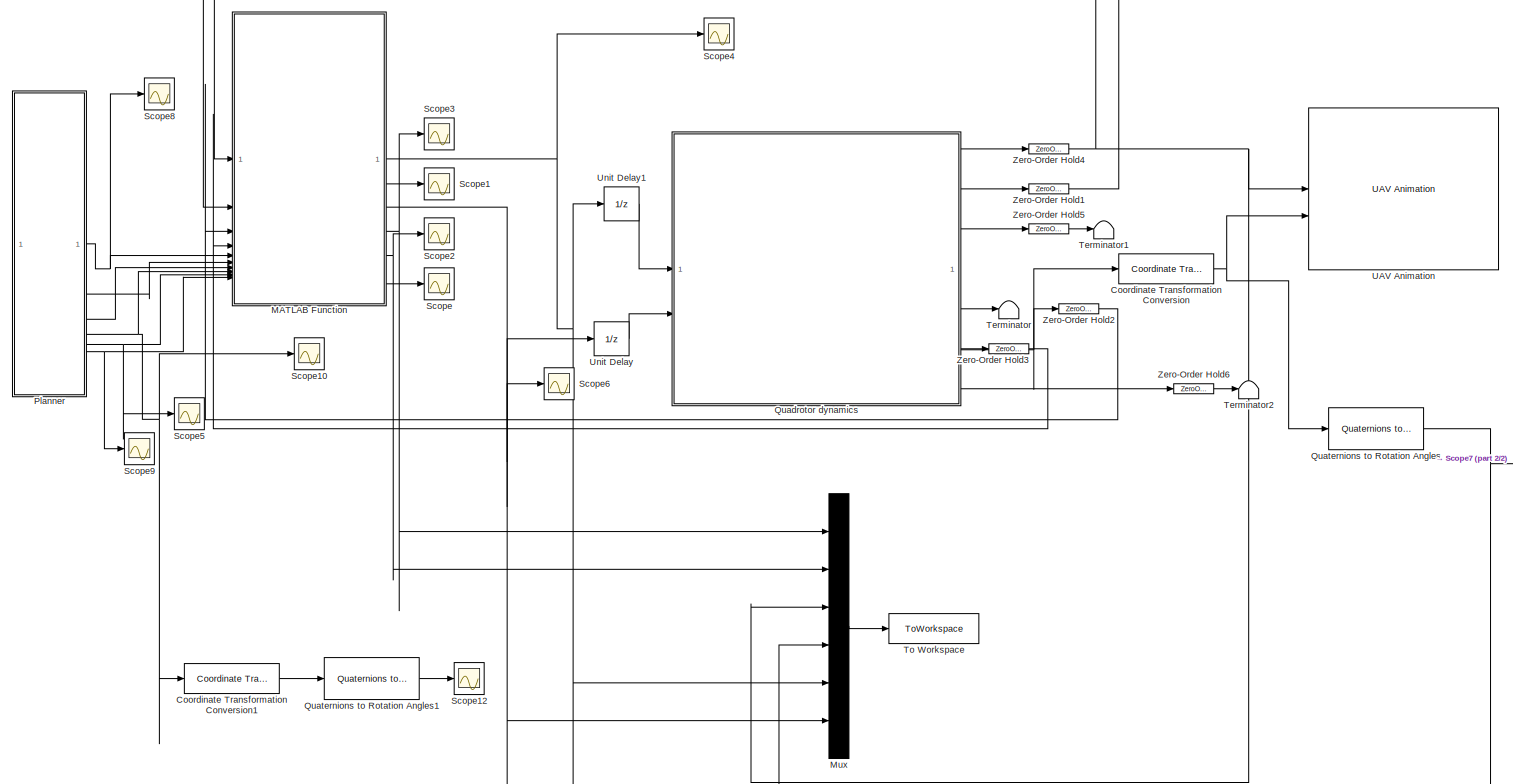
[diagram: root canvas - part 1/2, most of the canvas]
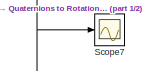
[diagram: root canvas - part 2/2, middle right region]
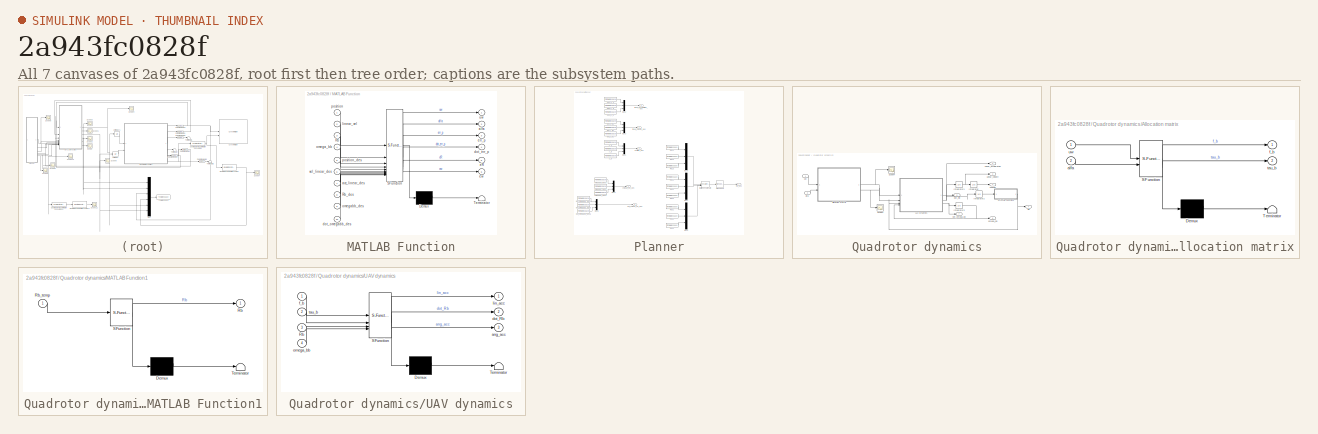
[diagram: thumbnail index - all 7 canvases of the model, root first then tree order]
MODEL slx_2a943fc0828f
KIND model
CONFIG AbsTol = auto
CONFIG EnableMultiTasking = off
CONFIG FixedStep = auto
CONFIG InitFcn = %% INITIALIZATION\n\n%% UAV PARAMETERS\n\nmass = 1.32;\nIb = diag([0.0154 0.0154 0.0263]); \ncf = 1.65776*10^(-5);\ncm = 2.1792*10^(-7);\nl = 0.45;\n\n%% SAMPLING TIME\nTs=0.001;\n\n%% PLANNER\nt_iniz = 0;\nttot=20; %duration\ntdead=10; %dead time to evaluate the steady-state\ntot_time = ttot + tdead;\nt1=linspace(0,ttot,round(ttot/Ts));\nt=linspace(0,ttot+tdead,round(ttot/Ts)+round(tdead/Ts));\np= zeros(4,length(t1)...<+4158ch>
CONFIG MaxStep = auto
CONFIG MinStep = auto
CONFIG RelTol = 1e-3
CONFIG SampleTimeConstraint = Unconstrained
CONFIG SolverName = VariableStepAuto
CONFIG StartTime = 0.0
CONFIG StopTime = 30.0
BLOCK [Reference] Coordinate Transformation Conversion  REF=robotcorelib/Coordinate Transformation Conversion
  SourceBlock = robotcorelib/Coordinate Transformation Conversion
  SourceType = robotics.slcore.internal.block.CoordinateTransformationConversion
BLOCK [Reference] Coordinate Transformation Conversion1  REF=robotcorelib/Coordinate Transformation Conversion
  SourceBlock = robotcorelib/Coordinate Transformation Conversion
  SourceType = robotics.slcore.internal.block.CoordinateTransformationConversion
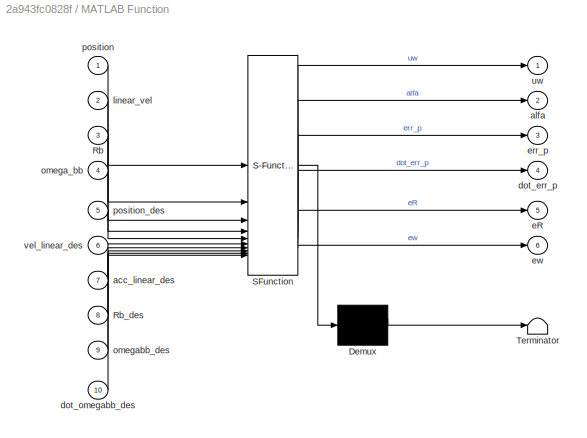
BLOCK [SubSystem] MATLAB Function
  ErrorFcn = Stateflow.Translate.translate
  PermitHierarchicalResolution = ExplicitOnly
  SFBlockType = MATLAB Function
  TreatAsAtomicUnit = on
BLOCK [Demux] MATLAB Function/ Demux 
  Outputs = 1
BLOCK [S-Function] MATLAB Function/ SFunction 
  EnableBusSupport = on
  FunctionName = sf_sfun
  Parameters = Ib,cf,cm,l,mass
  PortCounts = [10 7]
  SFcnIsStateOwnerBlock = off
  SFunctionDeploymentMode = off
  Tag = Stateflow S-Function 3
BLOCK [Terminator] MATLAB Function/ Terminator 
BLOCK [Inport] MATLAB Function/Rb
  Port = 3
BLOCK [Inport] MATLAB Function/Rb_des
  Port = 8
BLOCK [Inport] MATLAB Function/acc_linear_des
  Port = 7
BLOCK [Outport] MATLAB Function/alfa
  Port = 2
BLOCK [Outport] MATLAB Function/dot_err_p
  Port = 4
BLOCK [Inport] MATLAB Function/dot_omegabb_des
  Port = 10
BLOCK [Outport] MATLAB Function/eR
  Port = 5
BLOCK [Outport] MATLAB Function/err_p
  Port = 3
BLOCK [Outport] MATLAB Function/ew
  Port = 6
BLOCK [Inport] MATLAB Function/linear_vel
  Port = 2
BLOCK [Inport] MATLAB Function/omega_bb
  Port = 4
BLOCK [Inport] MATLAB Function/omegabb_des
  Port = 9
BLOCK [Inport] MATLAB Function/position
BLOCK [Inport] MATLAB Function/position_des
  Port = 5
BLOCK [Outport] MATLAB Function/uw
BLOCK [Inport] MATLAB Function/vel_linear_des
  Port = 6
BLOCK [Mux] Mux
  DisplayOption = bar
  Inputs = 6
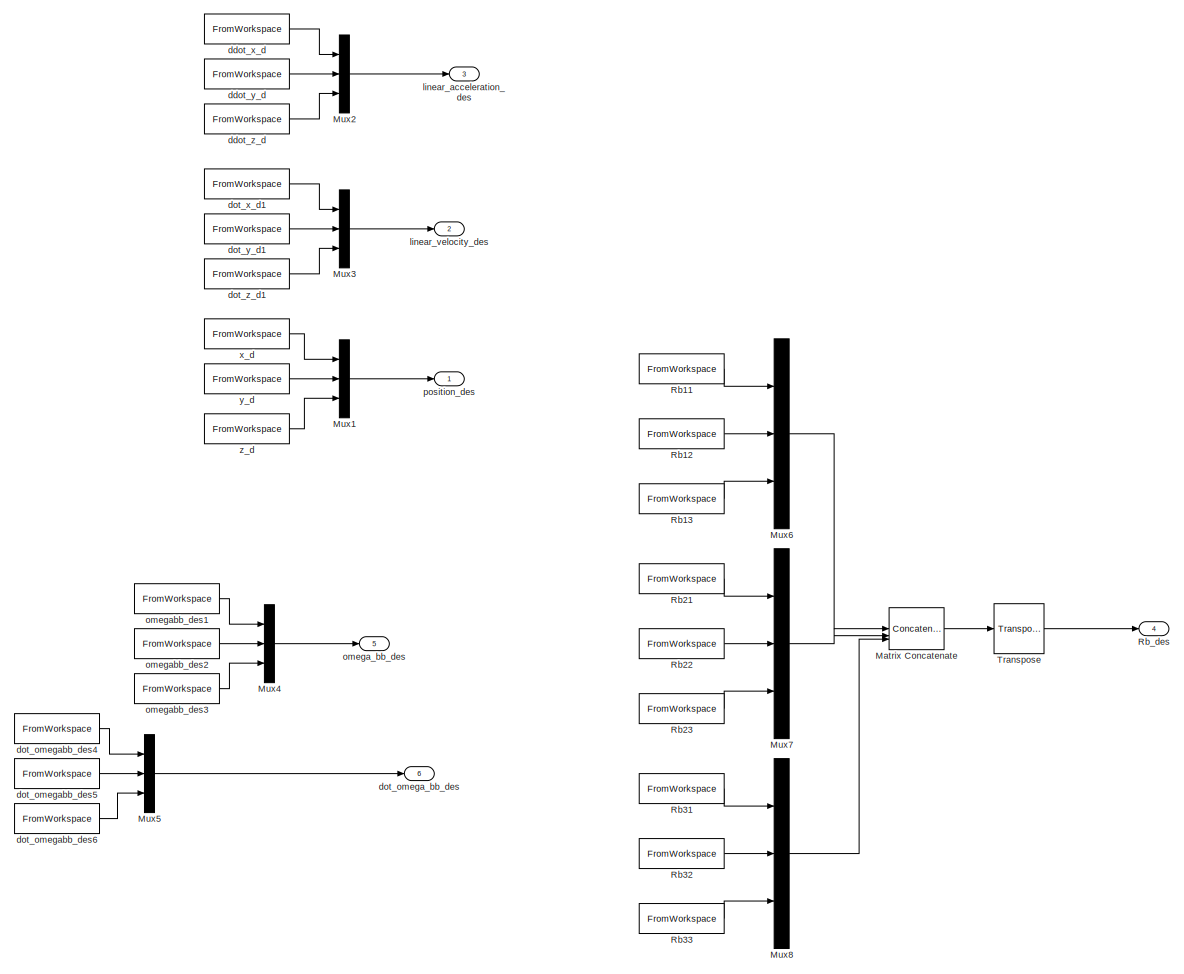
[diagram: Planner - part 1/1, most of the canvas]
BLOCK [SubSystem] Planner
BLOCK [Concatenate] Planner/Matrix Concatenate
  ConcatenateDimension = 2
  Mode = Multidimensional array
  NumInputs = 3
BLOCK [Mux] Planner/Mux1
  DisplayOption = bar
  Inputs = 3
BLOCK [Mux] Planner/Mux2
  DisplayOption = bar
  Inputs = 3
BLOCK [Mux] Planner/Mux3
  DisplayOption = bar
  Inputs = 3
BLOCK [Mux] Planner/Mux4
  DisplayOption = bar
  Inputs = 3
BLOCK [Mux] Planner/Mux5
  DisplayOption = bar
  Inputs = 3
BLOCK [Mux] Planner/Mux6
  DisplayOption = bar
  Inputs = 3
BLOCK [Mux] Planner/Mux7
  DisplayOption = bar
  Inputs = 3
BLOCK [Mux] Planner/Mux8
  DisplayOption = bar
  Inputs = 3
BLOCK [FromWorkspace] Planner/Rb11
  SampleTime = Ts
  VariableName = [t' squeeze(Rbdes(1,1,:))]
BLOCK [FromWorkspace] Planner/Rb12
  SampleTime = Ts
  VariableName = [t' squeeze(Rbdes(1,2,:))]
BLOCK [FromWorkspace] Planner/Rb13
  SampleTime = Ts
  VariableName = [t' squeeze(Rbdes(1,3,:))]
BLOCK [FromWorkspace] Planner/Rb21
  SampleTime = Ts
  VariableName = [t' squeeze(Rbdes(2,1,:))]
BLOCK [FromWorkspace] Planner/Rb22
  SampleTime = Ts
  VariableName = [t' squeeze(Rbdes(2,2,:))]
BLOCK [FromWorkspace] Planner/Rb23
  SampleTime = Ts
  VariableName = [t' squeeze(Rbdes(2,3,:))]
BLOCK [FromWorkspace] Planner/Rb31
  SampleTime = Ts
  VariableName = [t' squeeze(Rbdes(3,1,:))]
BLOCK [FromWorkspace] Planner/Rb32
  SampleTime = Ts
  VariableName = [t' squeeze(Rbdes(3,2,:))]
BLOCK [FromWorkspace] Planner/Rb33
  SampleTime = Ts
  VariableName = [t' squeeze(Rbdes(3,3,:))]
BLOCK [Outport] Planner/Rb_des
  Port = 4
BLOCK [Reference] Planner/Transpose  REF=matrix_library/Transpose
  LibrarySourceBlock = simulink/Matrix\nOperations/Transpose
  SourceBlock = matrix_library/Transpose
  SourceType = Transpose
BLOCK [FromWorkspace] Planner/ddot_x_d
  SampleTime = Ts
  VariableName = [t' ddot_csi_d(1,:)']
BLOCK [FromWorkspace] Planner/ddot_y_d
  SampleTime = Ts
  VariableName = [t' ddot_csi_d(2,:)']
BLOCK [FromWorkspace] Planner/ddot_z_d
  SampleTime = Ts
  VariableName = [t' ddot_csi_d(3,:)']
BLOCK [Outport] Planner/dot_omega_bb_des
  Port = 6
BLOCK [FromWorkspace] Planner/dot_omegabb_des4
  SampleTime = Ts
  VariableName = [t' dot_omegabb_des(1,:)']
BLOCK [FromWorkspace] Planner/dot_omegabb_des5
  SampleTime = Ts
  VariableName = [t' dot_omegabb_des(2,:)']
BLOCK [FromWorkspace] Planner/dot_omegabb_des6
  SampleTime = Ts
  VariableName = [t' dot_omegabb_des(3,:)']
BLOCK [FromWorkspace] Planner/dot_x_d1
  SampleTime = Ts
  VariableName = [t' dot_csi_d(1,:)']
BLOCK [FromWorkspace] Planner/dot_y_d1
  SampleTime = Ts
  VariableName = [t' dot_csi_d(2,:)']
BLOCK [FromWorkspace] Planner/dot_z_d1
  SampleTime = Ts
  VariableName = [t' dot_csi_d(3,:)']
BLOCK [Outport] Planner/linear_acceleration_des
  Port = 3
BLOCK [Outport] Planner/linear_velocity_des
  Port = 2
BLOCK [Outport] Planner/omega_bb_des
  Port = 5
BLOCK [FromWorkspace] Planner/omegabb_des1
  SampleTime = Ts
  VariableName = [t' omegabb_des(1,:)']
BLOCK [FromWorkspace] Planner/omegabb_des2
  SampleTime = Ts
  VariableName = [t' omegabb_des(2,:)']
BLOCK [FromWorkspace] Planner/omegabb_des3
  SampleTime = Ts
  VariableName = [t' omegabb_des(3,:)']
BLOCK [Outport] Planner/position_des
BLOCK [FromWorkspace] Planner/x_d
  SampleTime = Ts
  VariableName = [t' csi_d(1,:)']
BLOCK [FromWorkspace] Planner/y_d
  SampleTime = Ts
  VariableName = [t' csi_d(2,:)']
BLOCK [FromWorkspace] Planner/z_d
  SampleTime = Ts
  VariableName = [t' csi_d(3,:)']
BLOCK [SubSystem] Quadrotor dynamics
BLOCK [SubSystem] Quadrotor dynamics/Allocation matrix
  ErrorFcn = Stateflow.Translate.translate
  PermitHierarchicalResolution = ExplicitOnly
  SFBlockType = MATLAB Function
  TreatAsAtomicUnit = on
BLOCK [Demux] Quadrotor dynamics/Allocation matrix/ Demux 
  Outputs = 1
BLOCK [S-Function] Quadrotor dynamics/Allocation matrix/ SFunction 
  EnableBusSupport = on
  FunctionName = sf_sfun
  Parameters = cf,cm,l
  PortCounts = [2 3]
  SFcnIsStateOwnerBlock = off
  SFunctionDeploymentMode = off
  Tag = Stateflow S-Function 1
BLOCK [Terminator] Quadrotor dynamics/Allocation matrix/ Terminator 
BLOCK [Inport] Quadrotor dynamics/Allocation matrix/alfa
  Port = 2
BLOCK [Outport] Quadrotor dynamics/Allocation matrix/f_b
BLOCK [Outport] Quadrotor dynamics/Allocation matrix/tau_b
  Port = 2
BLOCK [Inport] Quadrotor dynamics/Allocation matrix/uw
BLOCK [Integrator] Quadrotor dynamics/Integrator
  InitialCondition = pos_0
BLOCK [Integrator] Quadrotor dynamics/Integrator1
  InitialCondition = lin_vel_0
BLOCK [Integrator] Quadrotor dynamics/Integrator2
  InitialCondition = [1 0 0; 0 1 0;0 0 1]
BLOCK [Integrator] Quadrotor dynamics/Integrator3
  InitialCondition = w_bb_0
BLOCK [Outport] Quadrotor dynamics/Linear_acceleration
  Port = 3
BLOCK [Outport] Quadrotor dynamics/Linear_velocity
  Port = 2
BLOCK [SubSystem] Quadrotor dynamics/MATLAB Function1
  ErrorFcn = Stateflow.Translate.translate
  PermitHierarchicalResolution = ExplicitOnly
  SFBlockType = MATLAB Function
  TreatAsAtomicUnit = on
BLOCK [Demux] Quadrotor dynamics/MATLAB Function1/ Demux 
  Outputs = 1
BLOCK [S-Function] Quadrotor dynamics/MATLAB Function1/ SFunction 
  EnableBusSupport = on
  FunctionName = sf_sfun
  PortCounts = [1 2]
  SFcnIsStateOwnerBlock = off
  SFunctionDeploymentMode = off
  Tag = Stateflow S-Function 5
BLOCK [Terminator] Quadrotor dynamics/MATLAB Function1/ Terminator 
BLOCK [Outport] Quadrotor dynamics/MATLAB Function1/Rb
BLOCK [Inport] Quadrotor dynamics/MATLAB Function1/Rb_temp
BLOCK [Outport] Quadrotor dynamics/Position
BLOCK [Outport] Quadrotor dynamics/Rb
  Port = 4
BLOCK [Scope] Quadrotor dynamics/Scope1
  Floating = off
  NumInputPorts = 1
  ScopeSpecificationString = Simulink.scopes.TimeScopeBlockCfg('CurrentConfiguration', extmgr.ConfigurationSet(extmgr.Configuration('Core','General UI',true,'DisplayFullSourceName',false,'ShowMainToolbar',true),extmgr.Configuration('Sources','WiredSimulink',true,'DataLogging',false,'DataLoggingVariableName','ScopeData5','DataLoggingLimitDataPoints',false,'DataLoggingMaxPoints','5000','DataLoggingDecimateData',false,'DataLoggi...<+1982ch>
BLOCK [Scope] Quadrotor dynamics/Scope4
  Floating = off
  NumInputPorts = 1
  ScopeSpecificationString = Simulink.scopes.TimeScopeBlockCfg('CurrentConfiguration', extmgr.ConfigurationSet(extmgr.Configuration('Core','General UI',true),extmgr.Configuration('Core','Source UI',true),extmgr.Configuration('Sources','WiredSimulink',true,'DataLoggingVariableName','ScopeData4'),extmgr.Configuration('Visuals','Time Domain',true,'SerializedDisplays',{struct('MinYLimReal','-15.88093','MaxYLimReal','12.93756','YL...<+1676ch>
BLOCK [SubSystem] Quadrotor dynamics/UAV dynamics
  ErrorFcn = Stateflow.Translate.translate
  PermitHierarchicalResolution = ExplicitOnly
  SFBlockType = MATLAB Function
  TreatAsAtomicUnit = on
BLOCK [Demux] Quadrotor dynamics/UAV dynamics/ Demux 
  Outputs = 1
BLOCK [S-Function] Quadrotor dynamics/UAV dynamics/ SFunction 
  EnableBusSupport = on
  FunctionName = sf_sfun
  Parameters = Ib,mass
  PortCounts = [4 4]
  SFcnIsStateOwnerBlock = off
  SFunctionDeploymentMode = off
  Tag = Stateflow S-Function 2
BLOCK [Terminator] Quadrotor dynamics/UAV dynamics/ Terminator 
BLOCK [Inport] Quadrotor dynamics/UAV dynamics/Rb
  Port = 3
BLOCK [Outport] Quadrotor dynamics/UAV dynamics/ang_acc
  Port = 3
BLOCK [Outport] Quadrotor dynamics/UAV dynamics/dot_Rb
  Port = 2
BLOCK [Inport] Quadrotor dynamics/UAV dynamics/f_b
BLOCK [Outport] Quadrotor dynamics/UAV dynamics/lin_acc
BLOCK [Inport] Quadrotor dynamics/UAV dynamics/omega_bb
  Port = 4
BLOCK [Inport] Quadrotor dynamics/UAV dynamics/tau_b
  Port = 2
BLOCK [Inport] Quadrotor dynamics/alfa
  Port = 2
BLOCK [Outport] Quadrotor dynamics/dot_Rb
  Port = 5
BLOCK [Outport] Quadrotor dynamics/dot_omega_bb
  Port = 7
BLOCK [Outport] Quadrotor dynamics/omega_bb
  Port = 6
BLOCK [Inport] Quadrotor dynamics/uw
BLOCK [Reference] Quaternions to Rotation Angles  REF=sharedtransform/Quaternions to Rotation Angles
  AttributesFormatString = Rotation Order: %<rotationOrder>
  LibrarySourceBlock = aerolibtransform2/Quaternions to Rotation Angles
  SourceBlock = sharedtransform/Quaternions to Rotation Angles
  SourceType = Quat2Ang
BLOCK [Reference] Quaternions to Rotation Angles1  REF=sharedtransform/Quaternions to Rotation Angles
  AttributesFormatString = Rotation Order: %<rotationOrder>
  LibrarySourceBlock = aerolibtransform2/Quaternions to Rotation Angles
  SourceBlock = sharedtransform/Quaternions to Rotation Angles
  SourceType = Quat2Ang
BLOCK [Scope] Scope
  Floating = off
  NumInputPorts = 1
  ScopeSpecificationString = Simulink.scopes.TimeScopeBlockCfg('CurrentConfiguration', extmgr.ConfigurationSet(extmgr.Configuration('Core','General UI',true),extmgr.Configuration('Core','Source UI',true),extmgr.Configuration('Sources','WiredSimulink',true),extmgr.Configuration('Visuals','Time Domain',true,'SerializedDisplays',{struct('MinYLimReal','-0.0000025','MaxYLimReal','0.0000053','YLabelReal','','MinYLimMag','0.0000000'...<+1638ch>
BLOCK [Scope] Scope1
  Floating = off
  NumInputPorts = 1
  ScopeSpecificationString = Simulink.scopes.TimeScopeBlockCfg('CurrentConfiguration', extmgr.ConfigurationSet(extmgr.Configuration('Core','General UI',true),extmgr.Configuration('Core','Source UI',true),extmgr.Configuration('Sources','WiredSimulink',true,'DataLoggingVariableName','ScopeData1'),extmgr.Configuration('Visuals','Time Domain',true,'SerializedDisplays',{struct('MinYLimReal','-0.000007','MaxYLimReal','0.000007','YL...<+1690ch>
BLOCK [Scope] Scope10
  Floating = off
  NumInputPorts = 1
  ScopeSpecificationString = Simulink.scopes.TimeScopeBlockCfg('CurrentConfiguration', extmgr.ConfigurationSet(extmgr.Configuration('Core','General UI',true),extmgr.Configuration('Core','Source UI',true),extmgr.Configuration('Sources','WiredSimulink',true,'DataLogging',true,'DataLoggingVariableName','Rb_out','DataLoggingSaveFormat','Structure With Time'),extmgr.Configuration('Visuals','Time Domain',true,'SerializedDisplays',{...<+1760ch>
BLOCK [Scope] Scope12
  Floating = off
  NumInputPorts = 1
  ScopeSpecificationString = Simulink.scopes.TimeScopeBlockCfg('CurrentConfiguration', extmgr.ConfigurationSet(extmgr.Configuration('Core','General UI',true),extmgr.Configuration('Core','Source UI',true),extmgr.Configuration('Sources','WiredSimulink',true,'DataLoggingVariableName','ScopeData2'),extmgr.Configuration('Visuals','Time Domain',true,'SerializedDisplays',{struct('MinYLimReal','-1.40089','MaxYLimReal','2.96245','YLab...<+1621ch>
BLOCK [Scope] Scope2
  Floating = off
  NumInputPorts = 1
  ScopeSpecificationString = Simulink.scopes.TimeScopeBlockCfg('CurrentConfiguration', extmgr.ConfigurationSet(extmgr.Configuration('Core','General UI',true),extmgr.Configuration('Core','Source UI',true),extmgr.Configuration('Sources','WiredSimulink',true,'DataLoggingVariableName','ScopeData1'),extmgr.Configuration('Visuals','Time Domain',true,'SerializedDisplays',{struct('MinYLimReal','-0.000001','MaxYLimReal','0.000001','YL...<+1671ch>
BLOCK [Scope] Scope3
  Floating = off
  NumInputPorts = 1
  ScopeSpecificationString = Simulink.scopes.TimeScopeBlockCfg('CurrentConfiguration', extmgr.ConfigurationSet(extmgr.Configuration('Core','General UI',true),extmgr.Configuration('Core','Source UI',true),extmgr.Configuration('Sources','WiredSimulink',true,'DataLoggingVariableName','ScopeData2'),extmgr.Configuration('Visuals','Time Domain',true,'SerializedDisplays',{struct('MinYLimReal','-0.0000069','MaxYLimReal','0.0000019','...<+1753ch>
BLOCK [Scope] Scope4
  Floating = off
  NumInputPorts = 1
  ScopeSpecificationString = Simulink.scopes.TimeScopeBlockCfg('CurrentConfiguration', extmgr.ConfigurationSet(extmgr.Configuration('Core','General UI',true),extmgr.Configuration('Core','Source UI',true),extmgr.Configuration('Sources','WiredSimulink',true,'DataLoggingVariableName','ScopeData4'),extmgr.Configuration('Visuals','Time Domain',true,'SerializedDisplays',{struct('MinYLimReal','105625.14918','MaxYLimReal','351920.094...<+1722ch>
BLOCK [Scope] Scope5
  Floating = off
  NumInputPorts = 1
  ScopeSpecificationString = Simulink.scopes.TimeScopeBlockCfg('CurrentConfiguration', extmgr.ConfigurationSet(extmgr.Configuration('Core','General UI',true,'DisplayFullSourceName',false,'ShowMainToolbar',true),extmgr.Configuration('Sources','WiredSimulink',true,'DataLogging',false,'DataLoggingVariableName','ScopeData1','DataLoggingLimitDataPoints',false,'DataLoggingMaxPoints','5000','DataLoggingDecimateData',false,'DataLoggi...<+1999ch>
BLOCK [Scope] Scope6
  Floating = off
  NumInputPorts = 1
  ScopeSpecificationString = Simulink.scopes.TimeScopeBlockCfg('CurrentConfiguration', extmgr.ConfigurationSet(extmgr.Configuration('Core','General UI',true),extmgr.Configuration('Core','Source UI',true),extmgr.Configuration('Sources','WiredSimulink',true,'DataLoggingVariableName','ScopeData1'),extmgr.Configuration('Visuals','Time Domain',true,'SerializedDisplays',{struct('MinYLimReal','-1.52062','MaxYLimReal','1.57271','YLab...<+1691ch>
BLOCK [Scope] Scope7
  Floating = off
  NumInputPorts = 1
  ScopeSpecificationString = Simulink.scopes.TimeScopeBlockCfg('CurrentConfiguration', extmgr.ConfigurationSet(extmgr.Configuration('Core','General UI',true),extmgr.Configuration('Core','Source UI',true),extmgr.Configuration('Sources','WiredSimulink',true,'DataLoggingVariableName','ScopeData1'),extmgr.Configuration('Visuals','Time Domain',true,'SerializedDisplays',{struct('MinYLimReal','-0.0458','MaxYLimReal','0.39294','YLabe...<+1642ch>
BLOCK [Scope] Scope8
  Floating = off
  NumInputPorts = 1
  ScopeSpecificationString = Simulink.scopes.TimeScopeBlockCfg('CurrentConfiguration', extmgr.ConfigurationSet(extmgr.Configuration('Core','General UI',true),extmgr.Configuration('Core','Source UI',true),extmgr.Configuration('Sources','WiredSimulink',true,'DataLoggingVariableName','ScopeData2'),extmgr.Configuration('Visuals','Time Domain',true,'SerializedDisplays',{struct('MinYLimReal','-4.625','MaxYLimReal','1.625','YLabelRe...<+1603ch>
BLOCK [Scope] Scope9
  Floating = off
  NumInputPorts = 1
  ScopeSpecificationString = Simulink.scopes.TimeScopeBlockCfg('CurrentConfiguration', extmgr.ConfigurationSet(extmgr.Configuration('Core','General UI',true,'DisplayFullSourceName',false,'ShowMainToolbar',true),extmgr.Configuration('Sources','WiredSimulink',true,'DataLogging',false,'DataLoggingVariableName','ScopeData2','DataLoggingLimitDataPoints',false,'DataLoggingMaxPoints','5000','DataLoggingDecimateData',false,'DataLoggi...<+1999ch>
BLOCK [Terminator] Terminator
BLOCK [Terminator] Terminator1
BLOCK [Terminator] Terminator2
BLOCK [ToWorkspace] To Workspace
  FixptAsFi = on
  MaxDataPoints = inf
  SampleTime = -1
  VariableName = simout
BLOCK [Reference] UAV Animation  REF=uavutilslib/UAV Animation
  SourceBlock = uavutilslib/UAV Animation
  SourceType = uav.sluav.internal.system.UAVAnimation
BLOCK [UnitDelay] Unit Delay
  HasFrameUpgradeWarning = on
  InitialCondition = [0; 0; 0; 0]
  SampleTime = -1
BLOCK [UnitDelay] Unit Delay1
  HasFrameUpgradeWarning = on
  InitialCondition = 1.952815847891130e+05*ones(4,1)
  SampleTime = -1
BLOCK [ZeroOrderHold] Zero-Order Hold1
  SampleTime = Ts
BLOCK [ZeroOrderHold] Zero-Order Hold2
  SampleTime = Ts
BLOCK [ZeroOrderHold] Zero-Order Hold3
  SampleTime = Ts
BLOCK [ZeroOrderHold] Zero-Order Hold4
  SampleTime = Ts
BLOCK [ZeroOrderHold] Zero-Order Hold5
  SampleTime = Ts
BLOCK [ZeroOrderHold] Zero-Order Hold6
  SampleTime = Ts
LINE Coordinate Transformation Conversion1:1 -> Quaternions to Rotation Angles1:1
NET Coordinate Transformation Conversion:1 -> Quaternions to Rotation Angles:1, UAV Animation:2
NET MATLAB Function:1 -> Mux:5, Scope4:1, Unit Delay1:1
NET MATLAB Function:2 -> Mux:6, Scope6:1, Unit Delay:1
NET MATLAB Function:3 -> Mux:1, Scope3:1
LINE MATLAB Function:4 -> Scope1:1
NET MATLAB Function:5 -> Mux:2, Scope2:1
LINE MATLAB Function:6 -> Scope:1
LINE Mux:1 -> To Workspace:1
LINE Planner/Matrix Concatenate:1 -> Planner/Transpose:1
LINE Planner/Mux1:1 -> Planner/position_des:1
LINE Planner/Mux2:1 -> Planner/linear_acceleration_des:1
LINE Planner/Mux3:1 -> Planner/linear_velocity_des:1
LINE Planner/Mux4:1 -> Planner/omega_bb_des:1
LINE Planner/Mux5:1 -> Planner/dot_omega_bb_des:1
LINE Planner/Mux6:1 -> Planner/Matrix Concatenate:1
LINE Planner/Mux7:1 -> Planner/Matrix Concatenate:2
LINE Planner/Mux8:1 -> Planner/Matrix Concatenate:3
LINE Planner/Rb11:1 -> Planner/Mux6:1
LINE Planner/Rb12:1 -> Planner/Mux6:2
LINE Planner/Rb13:1 -> Planner/Mux6:3
LINE Planner/Rb21:1 -> Planner/Mux7:1
LINE Planner/Rb22:1 -> Planner/Mux7:2
LINE Planner/Rb23:1 -> Planner/Mux7:3
LINE Planner/Rb31:1 -> Planner/Mux8:1
LINE Planner/Rb32:1 -> Planner/Mux8:2
LINE Planner/Rb33:1 -> Planner/Mux8:3
LINE Planner/Transpose:1 -> Planner/Rb_des:1
LINE Planner/ddot_x_d:1 -> Planner/Mux2:1
LINE Planner/ddot_y_d:1 -> Planner/Mux2:2
LINE Planner/ddot_z_d:1 -> Planner/Mux2:3
LINE Planner/dot_omegabb_des4:1 -> Planner/Mux5:1
LINE Planner/dot_omegabb_des5:1 -> Planner/Mux5:2
LINE Planner/dot_omegabb_des6:1 -> Planner/Mux5:3
LINE Planner/dot_x_d1:1 -> Planner/Mux3:1
LINE Planner/dot_y_d1:1 -> Planner/Mux3:2
LINE Planner/dot_z_d1:1 -> Planner/Mux3:3
LINE Planner/omegabb_des1:1 -> Planner/Mux4:1
LINE Planner/omegabb_des2:1 -> Planner/Mux4:2
LINE Planner/omegabb_des3:1 -> Planner/Mux4:3
LINE Planner/x_d:1 -> Planner/Mux1:1
LINE Planner/y_d:1 -> Planner/Mux1:2
LINE Planner/z_d:1 -> Planner/Mux1:3
NET Planner:1 -> MATLAB Function:5, Scope8:1
LINE Planner:2 -> MATLAB Function:6
LINE Planner:3 -> MATLAB Function:7
NET Planner:4 -> Coordinate Transformation Conversion1:1, MATLAB Function:8, Scope10:1
NET Planner:5 -> MATLAB Function:9, Scope5:1
NET Planner:6 -> MATLAB Function:10, Scope9:1
NET Quadrotor dynamics/Allocation matrix:1 -> Quadrotor dynamics/Scope4:1, Quadrotor dynamics/UAV dynamics:1
NET Quadrotor dynamics/Allocation matrix:2 -> Quadrotor dynamics/Scope1:1, Quadrotor dynamics/UAV dynamics:2
NET Quadrotor dynamics/Integrator1:1 -> Quadrotor dynamics/Integrator:1, Quadrotor dynamics/Linear_velocity:1
LINE Quadrotor dynamics/Integrator2:1 -> Quadrotor dynamics/MATLAB Function1:1
NET Quadrotor dynamics/Integrator3:1 -> Quadrotor dynamics/UAV dynamics:4, Quadrotor dynamics/omega_bb:1
LINE Quadrotor dynamics/Integrator:1 -> Quadrotor dynamics/Position:1
NET Quadrotor dynamics/MATLAB Function1:1 -> Quadrotor dynamics/Rb:1, Quadrotor dynamics/UAV dynamics:3
NET Quadrotor dynamics/UAV dynamics:1 -> Quadrotor dynamics/Integrator1:1, Quadrotor dynamics/Linear_acceleration:1
NET Quadrotor dynamics/UAV dynamics:2 -> Quadrotor dynamics/Integrator2:1, Quadrotor dynamics/dot_Rb:1
NET Quadrotor dynamics/UAV dynamics:3 -> Quadrotor dynamics/Integrator3:1, Quadrotor dynamics/dot_omega_bb:1
LINE Quadrotor dynamics/alfa:1 -> Quadrotor dynamics/Allocation matrix:2
LINE Quadrotor dynamics/uw:1 -> Quadrotor dynamics/Allocation matrix:1
LINE Quadrotor dynamics:1 -> Zero-Order Hold4:1
LINE Quadrotor dynamics:2 -> Zero-Order Hold1:1
LINE Quadrotor dynamics:3 -> Zero-Order Hold5:1
NET Quadrotor dynamics:4 -> Coordinate Transformation Conversion:1, Zero-Order Hold2:1
LINE Quadrotor dynamics:5 -> Terminator:1
LINE Quadrotor dynamics:6 -> Zero-Order Hold3:1
LINE Quadrotor dynamics:7 -> Zero-Order Hold6:1
LINE Quaternions to Rotation Angles1:1 -> Scope12:1
NET Quaternions to Rotation Angles:1 -> Mux:4, Scope7:1
LINE Unit Delay1:1 -> Quadrotor dynamics:1
LINE Unit Delay:1 -> Quadrotor dynamics:2
LINE Zero-Order Hold1:1 -> MATLAB Function:2
LINE Zero-Order Hold2:1 -> MATLAB Function:3
LINE Zero-Order Hold3:1 -> MATLAB Function:4
NET Zero-Order Hold4:1 -> MATLAB Function:1, Mux:3, UAV Animation:1
LINE Zero-Order Hold5:1 -> Terminator1:1
LINE Zero-Order Hold6:1 -> Terminator2:1
note: NET lines group one-source signal fan-out (src -> all destinations, sorted); 1:1 wires keep LINE
CHART Quadrotor dynamics/Allocation matrix states=1 transitions=1
  STATE_LABEL 'eML_blk_kernel()'
  STATE_LABEL 'SCRIPT:\nfunction [f_b,tau_b] = fcn(uw,alfa,cm, cf, l)\n\nalfa1 = alfa(1);\nalfa2 = alfa(2);\nalfa3 = alfa(3);\nalfa4 = alfa(4);\n\n\nGq = [0 -cf*sin(alfa2) 0 cf*sin(alfa4);\n    cf*sin(alfa1) 0 -cf*sin(alfa3) 0;\n    -cf*cos(alfa1) -cf*cos(alfa2) -cf*cos(alfa3) -cf*cos(alfa4);\n    0 -l*cf*cos(alfa2)-cm*sin(alfa2) 0 l*cf*cos(alfa4)+cm*sin(alfa4);\n    l*cf*cos(alfa1)+cm*sin(alfa1) 0 -l*cf*cos(alfa3)-cm*sin(al...<+187ch>'
CHART Quadrotor dynamics/UAV dynamics states=1 transitions=1
  STATE_LABEL 'eML_blk_kernel()'
  STATE_LABEL "SCRIPT:\nfunction [lin_acc, dot_Rb, ang_acc] = fcn(f_b,tau_b,Rb,omega_bb,mass, Ib)\n\nlin_acc = 9.81*[0 0 1]'+(1/mass)*Rb*f_b;\ndot_Rb = Rb*skew(omega_bb);\nang_acc = inv(Ib)*(-skew(omega_bb)*Ib*omega_bb + tau_b);\n\nend\n\nfunction S = skew(v)\nif(numel(v)~= 1)\nS= [0 -v(3) v(2); \n    v(3) 0 -v(1);\n    -v(2) v(1) 0];\nelse\nS= zeros(3);\nend\nend"
CHART MATLAB Function states=1 transitions=1
  STATE_LABEL 'eML_blk_kernel()'
  STATE_LABEL 'SCRIPT:\nfunction [uw,alfa, err_p, dot_err_p, eR, ew] = fcn(position, linear_vel, Rb, omega_bb, position_des, vel_linear_des, acc_linear_des, Rb_des, omegabb_des, dot_omegabb_des, ...\n    cf, cm, mass, Ib, l)\n\n%% WRITE HERE THE CONTROL FOR THE TILTING PROPELLER UAV\n% position: linear position measure\n% linear_vel: linear velocity measure\n% Rb: current rotation matrix\n% omega_bb: current angular vel...<+2675ch>'
CHART Quadrotor dynamics/MATLAB Function1 states=1 transitions=1
  STATE_LABEL 'eML_blk_kernel()'
  STATE_LABEL "SCRIPT:\nfunction Rb = fcn(Rb_temp)\n    [U,S,V] = svd(Rb_temp);\n    sigma = det(U*V');\n    S_ = diag([1 1 sigma]);\n\n    Rb = U*S_*V';\nend\n"
CHART  states=0 transitions=0
CHART  states=0 transitions=0
CHART  states=0 transitions=0
CHART  states=0 transitions=0
